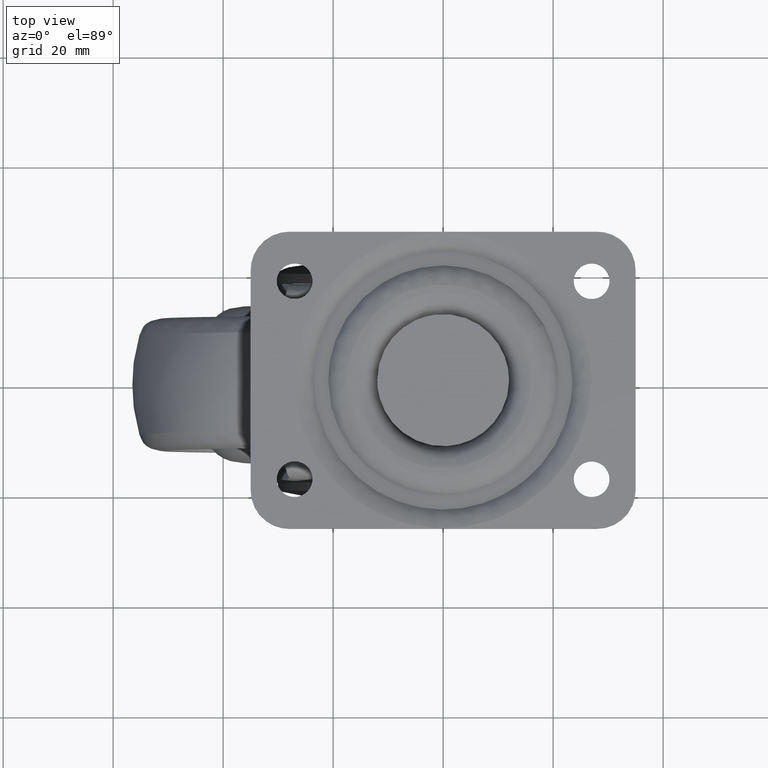
[diagram: clean part render]
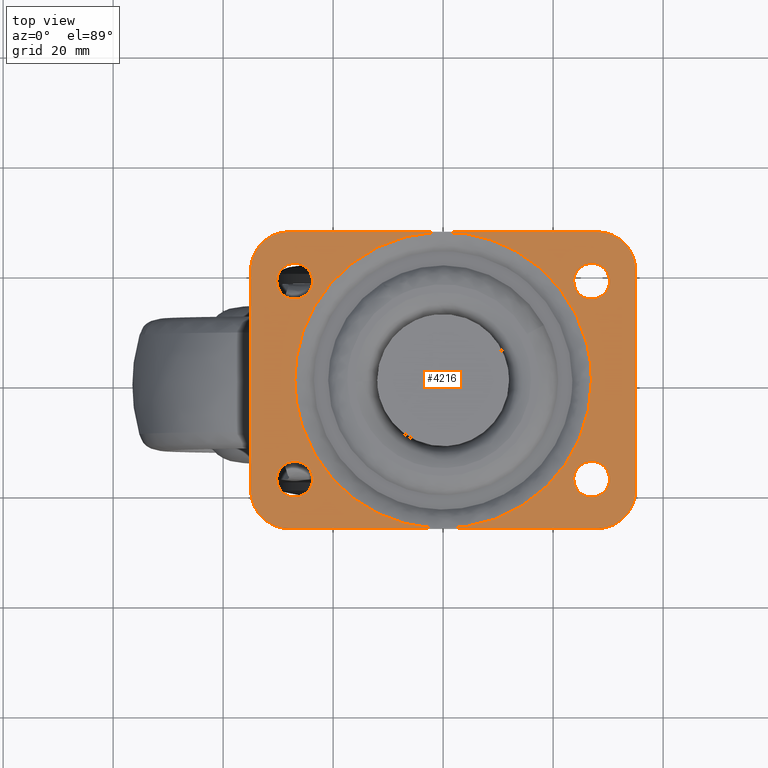
[diagram: same view with one face highlighted and labeled with its STEP entity id]
A machine part, top view. The second image highlights one B-rep face of the part: STEP entity #4216.
In plain terms, the highlighted face is a freeform B-spline surface patch.
Its self-contained STEP definition (entity closure, byte-faithful):
#2507=CARTESIAN_POINT('',(-27.383605780564441,14.772718387700410,3.306940E-013));
#2508=VERTEX_POINT('',#2507);
#2509=CARTESIAN_POINT('',(-23.750000000000000,18.0,0.0));
#2510=VERTEX_POINT('',#2509);
#2511=CARTESIAN_POINT('',(-27.383605780564441,14.772718387700410,3.306940E-013));
#2512=CARTESIAN_POINT('',(-27.192475618856520,14.750000000000004,0.0));
#2513=CARTESIAN_POINT('',(-27.0,14.750000000000000,0.0));
#2514=CARTESIAN_POINT('',(-23.749999999999996,14.749999999999993,0.0));
#2515=CARTESIAN_POINT('',(-23.750000000000000,18.0,0.0));
#2523=(BOUNDED_CURVE()B_SPLINE_CURVE(2,(#2511,#2512,#2513,#2514,#2515),.UNSPECIFIED.,.F.,.U.)B_SPLINE_CURVE_WITH_KNOTS((3,2,3),(0.229562760595619,0.250000000000000,0.500000000000000),.UNSPECIFIED.)CURVE()GEOMETRIC_REPRESENTATION_ITEM()RATIONAL_B_SPLINE_CURVE((0.956027316877157,0.976056284668759,1.0,0.707106781186547,1.0))REPRESENTATION_ITEM(''));
#2524=EDGE_CURVE('',#2508,#2510,#2523,.T.);
#2526=CARTESIAN_POINT('',(-26.801592246465201,21.243938094868220,-1.318390E-016));
#2527=VERTEX_POINT('',#2526);
#2528=CARTESIAN_POINT('',(-23.750000000000000,18.0,0.0));
#2529=CARTESIAN_POINT('',(-23.750000000000000,21.057294717355663,0.0));
#2530=CARTESIAN_POINT('',(-26.801592246465194,21.243938094868223,-1.318390E-016));
#2538=(BOUNDED_CURVE()B_SPLINE_CURVE(2,(#2528,#2529,#2530),.UNSPECIFIED.,.F.,.U.)B_SPLINE_CURVE_WITH_KNOTS((3,3),(0.500000000000000,0.739332962237020),.UNSPECIFIED.)CURVE()GEOMETRIC_REPRESENTATION_ITEM()RATIONAL_B_SPLINE_CURVE((1.0,0.719603993288963,0.976072041662597))REPRESENTATION_ITEM(''));
#2539=EDGE_CURVE('',#2510,#2527,#2538,.T.);
#2610=CARTESIAN_POINT('',(-30.250000000000000,18.0,0.0));
#2611=VERTEX_POINT('',#2610);
#2612=CARTESIAN_POINT('',(-30.250000000000000,18.0,0.0));
#2613=CARTESIAN_POINT('',(-30.250000000000007,15.113427852826153,0.0));
#2614=CARTESIAN_POINT('',(-27.383605780564444,14.772718387700406,3.306940E-013));
#2622=(BOUNDED_CURVE()B_SPLINE_CURVE(2,(#2612,#2613,#2614),.UNSPECIFIED.,.F.,.U.)B_SPLINE_CURVE_WITH_KNOTS((3,3),(0.0,0.229562760595619),.UNSPECIFIED.)CURVE()GEOMETRIC_REPRESENTATION_ITEM()RATIONAL_B_SPLINE_CURVE((1.0,0.731050496517788,0.956027316877158))REPRESENTATION_ITEM(''));
#2623=EDGE_CURVE('',#2611,#2508,#2622,.T.);
#2657=CARTESIAN_POINT('',(-26.801592246465201,21.243938094868220,-1.318390E-016));
#2658=CARTESIAN_POINT('',(-26.900703519232941,21.249999999999993,0.0));
#2659=CARTESIAN_POINT('',(-27.0,21.250000000000000,0.0));
#2660=CARTESIAN_POINT('',(-30.250000000000000,21.249999999999996,0.0));
#2661=CARTESIAN_POINT('',(-30.250000000000000,18.0,0.0));
#2669=(BOUNDED_CURVE()B_SPLINE_CURVE(2,(#2657,#2658,#2659,#2660,#2661),.UNSPECIFIED.,.F.,.U.)B_SPLINE_CURVE_WITH_KNOTS((3,2,3),(0.739332962237020,0.750000000000000,1.0),.UNSPECIFIED.)CURVE()GEOMETRIC_REPRESENTATION_ITEM()RATIONAL_B_SPLINE_CURVE((0.976072041662596,0.987502787897584,1.0,0.707106781186547,1.0))REPRESENTATION_ITEM(''));
#2670=EDGE_CURVE('',#2527,#2611,#2669,.T.);
#2697=CARTESIAN_POINT('',(-27.383605780564441,-21.227281612299588,3.306940E-013));
#2698=VERTEX_POINT('',#2697);
#2699=CARTESIAN_POINT('',(-23.750000000000000,-18.0,0.0));
#2700=VERTEX_POINT('',#2699);
#2701=CARTESIAN_POINT('',(-27.383605780564448,-21.227281612299588,3.306940E-013));
#2702=CARTESIAN_POINT('',(-27.192475618856523,-21.249999999999993,0.0));
#2703=CARTESIAN_POINT('',(-27.0,-21.250000000000000,0.0));
#2704=CARTESIAN_POINT('',(-23.749999999999996,-21.249999999999996,0.0));
#2705=CARTESIAN_POINT('',(-23.750000000000000,-18.0,0.0));
#2713=(BOUNDED_CURVE()B_SPLINE_CURVE(2,(#2701,#2702,#2703,#2704,#2705),.UNSPECIFIED.,.F.,.U.)B_SPLINE_CURVE_WITH_KNOTS((3,2,3),(0.229562760595619,0.250000000000000,0.500000000000000),.UNSPECIFIED.)CURVE()GEOMETRIC_REPRESENTATION_ITEM()RATIONAL_B_SPLINE_CURVE((0.956027316877157,0.976056284668759,1.0,0.707106781186547,1.0))REPRESENTATION_ITEM(''));
#2714=EDGE_CURVE('',#2698,#2700,#2713,.T.);
#2716=CARTESIAN_POINT('',(-26.801592246465201,-14.756061905131780,-1.318390E-016));
#2717=VERTEX_POINT('',#2716);
#2718=CARTESIAN_POINT('',(-23.750000000000000,-18.0,0.0));
#2719=CARTESIAN_POINT('',(-23.750000000000000,-14.942705282644328,0.0));
#2720=CARTESIAN_POINT('',(-26.801592246465194,-14.756061905131780,-1.318390E-016));
#2728=(BOUNDED_CURVE()B_SPLINE_CURVE(2,(#2718,#2719,#2720),.UNSPECIFIED.,.F.,.U.)B_SPLINE_CURVE_WITH_KNOTS((3,3),(0.500000000000000,0.739332962237020),.UNSPECIFIED.)CURVE()GEOMETRIC_REPRESENTATION_ITEM()RATIONAL_B_SPLINE_CURVE((1.0,0.719603993288963,0.976072041662597))REPRESENTATION_ITEM(''));
#2729=EDGE_CURVE('',#2700,#2717,#2728,.T.);
#2800=CARTESIAN_POINT('',(-30.250000000000000,-18.0,0.0));
#2801=VERTEX_POINT('',#2800);
#2802=CARTESIAN_POINT('',(-30.250000000000000,-18.0,0.0));
#2803=CARTESIAN_POINT('',(-30.250000000000007,-20.886572147173840,0.0));
#2804=CARTESIAN_POINT('',(-27.383605780564441,-21.227281612299596,3.306940E-013));
#2812=(BOUNDED_CURVE()B_SPLINE_CURVE(2,(#2802,#2803,#2804),.UNSPECIFIED.,.F.,.U.)B_SPLINE_CURVE_WITH_KNOTS((3,3),(0.0,0.229562760595619),.UNSPECIFIED.)CURVE()GEOMETRIC_REPRESENTATION_ITEM()RATIONAL_B_SPLINE_CURVE((1.0,0.731050496517789,0.956027316877157))REPRESENTATION_ITEM(''));
#2813=EDGE_CURVE('',#2801,#2698,#2812,.T.);
#2847=CARTESIAN_POINT('',(-26.801592246465201,-14.756061905131778,-1.318390E-016));
#2848=CARTESIAN_POINT('',(-26.900703519232941,-14.750000000000004,0.0));
#2849=CARTESIAN_POINT('',(-27.0,-14.750000000000000,0.0));
#2850=CARTESIAN_POINT('',(-30.250000000000000,-14.749999999999993,0.0));
#2851=CARTESIAN_POINT('',(-30.250000000000000,-18.0,0.0));
#2859=(BOUNDED_CURVE()B_SPLINE_CURVE(2,(#2847,#2848,#2849,#2850,#2851),.UNSPECIFIED.,.F.,.U.)B_SPLINE_CURVE_WITH_KNOTS((3,2,3),(0.739332962237020,0.750000000000000,1.0),.UNSPECIFIED.)CURVE()GEOMETRIC_REPRESENTATION_ITEM()RATIONAL_B_SPLINE_CURVE((0.976072041662596,0.987502787897584,1.0,0.707106781186547,1.0))REPRESENTATION_ITEM(''));
#2860=EDGE_CURVE('',#2717,#2801,#2859,.T.);
#2887=CARTESIAN_POINT('',(26.616394219435559,14.772718387700410,3.306940E-013));
#2888=VERTEX_POINT('',#2887);
#2889=CARTESIAN_POINT('',(30.250000000000000,18.0,0.0));
#2890=VERTEX_POINT('',#2889);
#2891=CARTESIAN_POINT('',(26.616394219435552,14.772718387700412,3.306940E-013));
#2892=CARTESIAN_POINT('',(26.807524381143484,14.749999999999996,0.0));
#2893=CARTESIAN_POINT('',(27.0,14.750000000000000,0.0));
#2894=CARTESIAN_POINT('',(30.250000000000000,14.749999999999993,0.0));
#2895=CARTESIAN_POINT('',(30.250000000000000,18.0,0.0));
#2903=(BOUNDED_CURVE()B_SPLINE_CURVE(2,(#2891,#2892,#2893,#2894,#2895),.UNSPECIFIED.,.F.,.U.)B_SPLINE_CURVE_WITH_KNOTS((3,2,3),(0.229562760595619,0.250000000000000,0.500000000000000),.UNSPECIFIED.)CURVE()GEOMETRIC_REPRESENTATION_ITEM()RATIONAL_B_SPLINE_CURVE((0.956027316877157,0.976056284668759,1.0,0.707106781186547,1.0))REPRESENTATION_ITEM(''));
#2904=EDGE_CURVE('',#2888,#2890,#2903,.T.);
#2906=CARTESIAN_POINT('',(27.198407753534799,21.243938094868220,1.353084E-016));
#2907=VERTEX_POINT('',#2906);
#2908=CARTESIAN_POINT('',(30.250000000000000,18.0,0.0));
#2909=CARTESIAN_POINT('',(30.250000000000000,21.057294717355663,0.0));
#2910=CARTESIAN_POINT('',(27.198407753534802,21.243938094868223,1.353084E-016));
#2918=(BOUNDED_CURVE()B_SPLINE_CURVE(2,(#2908,#2909,#2910),.UNSPECIFIED.,.F.,.U.)B_SPLINE_CURVE_WITH_KNOTS((3,3),(0.500000000000000,0.739332962237020),.UNSPECIFIED.)CURVE()GEOMETRIC_REPRESENTATION_ITEM()RATIONAL_B_SPLINE_CURVE((1.0,0.719603993288963,0.976072041662597))REPRESENTATION_ITEM(''));
#2919=EDGE_CURVE('',#2890,#2907,#2918,.T.);
#2990=CARTESIAN_POINT('',(23.750000000000000,18.0,0.0));
#2991=VERTEX_POINT('',#2990);
#2992=CARTESIAN_POINT('',(23.750000000000000,18.0,0.0));
#2993=CARTESIAN_POINT('',(23.750000000000000,15.113427852826145,0.0));
#2994=CARTESIAN_POINT('',(26.616394219435556,14.772718387700404,3.306940E-013));
#3002=(BOUNDED_CURVE()B_SPLINE_CURVE(2,(#2992,#2993,#2994),.UNSPECIFIED.,.F.,.U.)B_SPLINE_CURVE_WITH_KNOTS((3,3),(0.0,0.229562760595619),.UNSPECIFIED.)CURVE()GEOMETRIC_REPRESENTATION_ITEM()RATIONAL_B_SPLINE_CURVE((1.0,0.731050496517789,0.956027316877157))REPRESENTATION_ITEM(''));
#3003=EDGE_CURVE('',#2991,#2888,#3002,.T.);
#3037=CARTESIAN_POINT('',(27.198407753534802,21.243938094868223,1.353084E-016));
#3038=CARTESIAN_POINT('',(27.099296480767059,21.250000000000000,0.0));
#3039=CARTESIAN_POINT('',(27.0,21.250000000000000,0.0));
#3040=CARTESIAN_POINT('',(23.749999999999996,21.249999999999996,0.0));
#3041=CARTESIAN_POINT('',(23.750000000000000,18.0,0.0));
#3049=(BOUNDED_CURVE()B_SPLINE_CURVE(2,(#3037,#3038,#3039,#3040,#3041),.UNSPECIFIED.,.F.,.U.)B_SPLINE_CURVE_WITH_KNOTS((3,2,3),(0.739332962237020,0.750000000000000,1.0),.UNSPECIFIED.)CURVE()GEOMETRIC_REPRESENTATION_ITEM()RATIONAL_B_SPLINE_CURVE((0.976072041662597,0.987502787897585,1.0,0.707106781186547,1.0))REPRESENTATION_ITEM(''));
#3050=EDGE_CURVE('',#2907,#2991,#3049,.T.);
#3077=CARTESIAN_POINT('',(26.616394219435559,-21.227281612299588,3.306940E-013));
#3078=VERTEX_POINT('',#3077);
#3079=CARTESIAN_POINT('',(30.250000000000000,-18.0,0.0));
#3080=VERTEX_POINT('',#3079);
#3081=CARTESIAN_POINT('',(26.616394219435556,-21.227281612299588,3.306940E-013));
#3082=CARTESIAN_POINT('',(26.807524381143477,-21.249999999999993,0.0));
#3083=CARTESIAN_POINT('',(27.0,-21.250000000000000,0.0));
#3084=CARTESIAN_POINT('',(30.250000000000000,-21.249999999999996,0.0));
#3085=CARTESIAN_POINT('',(30.250000000000000,-18.0,0.0));
#3093=(BOUNDED_CURVE()B_SPLINE_CURVE(2,(#3081,#3082,#3083,#3084,#3085),.UNSPECIFIED.,.F.,.U.)B_SPLINE_CURVE_WITH_KNOTS((3,2,3),(0.229562760595619,0.250000000000000,0.500000000000000),.UNSPECIFIED.)CURVE()GEOMETRIC_REPRESENTATION_ITEM()RATIONAL_B_SPLINE_CURVE((0.956027316877157,0.976056284668759,1.0,0.707106781186547,1.0))REPRESENTATION_ITEM(''));
#3094=EDGE_CURVE('',#3078,#3080,#3093,.T.);
#3096=CARTESIAN_POINT('',(27.198407753534799,-14.756061905131780,-1.318390E-016));
#3097=VERTEX_POINT('',#3096);
#3098=CARTESIAN_POINT('',(30.250000000000000,-18.0,0.0));
#3099=CARTESIAN_POINT('',(30.250000000000000,-14.942705282644328,0.0));
#3100=CARTESIAN_POINT('',(27.198407753534802,-14.756061905131780,-1.318390E-016));
#3108=(BOUNDED_CURVE()B_SPLINE_CURVE(2,(#3098,#3099,#3100),.UNSPECIFIED.,.F.,.U.)B_SPLINE_CURVE_WITH_KNOTS((3,3),(0.500000000000000,0.739332962237020),.UNSPECIFIED.)CURVE()GEOMETRIC_REPRESENTATION_ITEM()RATIONAL_B_SPLINE_CURVE((1.0,0.719603993288963,0.976072041662597))REPRESENTATION_ITEM(''));
#3109=EDGE_CURVE('',#3080,#3097,#3108,.T.);
#3180=CARTESIAN_POINT('',(23.750000000000000,-18.0,0.0));
#3181=VERTEX_POINT('',#3180);
#3182=CARTESIAN_POINT('',(23.750000000000000,-18.0,0.0));
#3183=CARTESIAN_POINT('',(23.750000000000004,-20.886572147173840,0.0));
#3184=CARTESIAN_POINT('',(26.616394219435556,-21.227281612299588,3.306940E-013));
#3192=(BOUNDED_CURVE()B_SPLINE_CURVE(2,(#3182,#3183,#3184),.UNSPECIFIED.,.F.,.U.)B_SPLINE_CURVE_WITH_KNOTS((3,3),(0.0,0.229562760595619),.UNSPECIFIED.)CURVE()GEOMETRIC_REPRESENTATION_ITEM()RATIONAL_B_SPLINE_CURVE((1.0,0.731050496517789,0.956027316877157))REPRESENTATION_ITEM(''));
#3193=EDGE_CURVE('',#3181,#3078,#3192,.T.);
#3227=CARTESIAN_POINT('',(27.198407753534802,-14.756061905131780,-1.318390E-016));
#3228=CARTESIAN_POINT('',(27.099296480767059,-14.749999999999998,0.0));
#3229=CARTESIAN_POINT('',(27.0,-14.750000000000000,0.0));
#3230=CARTESIAN_POINT('',(23.749999999999996,-14.749999999999993,0.0));
#3231=CARTESIAN_POINT('',(23.750000000000000,-18.0,0.0));
#3239=(BOUNDED_CURVE()B_SPLINE_CURVE(2,(#3227,#3228,#3229,#3230,#3231),.UNSPECIFIED.,.F.,.U.)B_SPLINE_CURVE_WITH_KNOTS((3,2,3),(0.739332962237020,0.750000000000000,1.0),.UNSPECIFIED.)CURVE()GEOMETRIC_REPRESENTATION_ITEM()RATIONAL_B_SPLINE_CURVE((0.976072041662597,0.987502787897585,1.0,0.707106781186547,1.0))REPRESENTATION_ITEM(''));
#3240=EDGE_CURVE('',#3097,#3181,#3239,.T.);
#3693=CARTESIAN_POINT('',(-23.463723184745589,13.285950106063810,-6.720702E-016));
#3694=VERTEX_POINT('',#3693);
#3708=CARTESIAN_POINT('',(-26.964101615137750,0.0,0.0));
#3709=VERTEX_POINT('',#3708);
#3710=CARTESIAN_POINT('',(-26.964101615137750,0.0,0.0));
#3711=CARTESIAN_POINT('',(-26.964101615137750,7.104088073108244,0.0));
#3712=CARTESIAN_POINT('',(-23.463723184745596,13.285950106063812,-6.720702E-016));
#3720=(BOUNDED_CURVE()B_SPLINE_CURVE(2,(#3710,#3711,#3712),.UNSPECIFIED.,.F.,.U.)B_SPLINE_CURVE_WITH_KNOTS((3,3),(0.0,0.083983638484567),.UNSPECIFIED.)CURVE()GEOMETRIC_REPRESENTATION_ITEM()RATIONAL_B_SPLINE_CURVE((1.0,0.901607047186359,0.869321279800958))REPRESENTATION_ITEM(''));
#3721=EDGE_CURVE('',#3709,#3694,#3720,.T.);
#3723=CARTESIAN_POINT('',(26.964101615137750,0.0,0.0));
#3724=VERTEX_POINT('',#3723);
#3725=CARTESIAN_POINT('',(26.964101615137750,0.0,0.0));
#3726=CARTESIAN_POINT('',(26.964101615137753,-26.964101615137753,0.0));
#3727=CARTESIAN_POINT('',(0.0,-26.964101615137750,0.0));
#3728=CARTESIAN_POINT('',(-26.964101615137753,-26.964101615137753,0.0));
#3729=CARTESIAN_POINT('',(-26.964101615137750,0.0,0.0));
#3737=(BOUNDED_CURVE()B_SPLINE_CURVE(2,(#3725,#3726,#3727,#3728,#3729),.UNSPECIFIED.,.F.,.U.)B_SPLINE_CURVE_WITH_KNOTS((3,2,3),(0.500000000000000,0.750000000000000,1.0),.UNSPECIFIED.)CURVE()GEOMETRIC_REPRESENTATION_ITEM()RATIONAL_B_SPLINE_CURVE((1.0,0.707106781186547,1.0,0.707106781186547,1.0))REPRESENTATION_ITEM(''));
#3738=EDGE_CURVE('',#3724,#3709,#3737,.T.);
#3740=CARTESIAN_POINT('',(13.285950106063799,23.463723184745589,-6.109730E-016));
#3741=VERTEX_POINT('',#3740);
#3742=CARTESIAN_POINT('',(13.285950106063797,23.463723184745593,-6.109730E-016));
#3743=CARTESIAN_POINT('',(26.964101615137743,15.718693248031707,0.0));
#3744=CARTESIAN_POINT('',(26.964101615137750,0.0,0.0));
#3752=(BOUNDED_CURVE()B_SPLINE_CURVE(2,(#3742,#3743,#3744),.UNSPECIFIED.,.F.,.U.)B_SPLINE_CURVE_WITH_KNOTS((3,3),(0.333983638484567,0.500000000000000),.UNSPECIFIED.)CURVE()GEOMETRIC_REPRESENTATION_ITEM()RATIONAL_B_SPLINE_CURVE((0.869321279800958,0.805499734000188,1.0))REPRESENTATION_ITEM(''));
#3753=EDGE_CURVE('',#3741,#3724,#3752,.T.);
#3804=CARTESIAN_POINT('',(-23.463723184745593,13.285950106063810,-6.720702E-016));
#3805=CARTESIAN_POINT('',(-15.718693248031693,26.964101615137743,0.0));
#3806=CARTESIAN_POINT('',(0.0,26.964101615137750,0.0));
#3807=CARTESIAN_POINT('',(7.104088073108255,26.964101615137739,0.0));
#3808=CARTESIAN_POINT('',(13.285950106063799,23.463723184745596,-6.109730E-016));
#3816=(BOUNDED_CURVE()B_SPLINE_CURVE(2,(#3804,#3805,#3806,#3807,#3808),.UNSPECIFIED.,.F.,.U.)B_SPLINE_CURVE_WITH_KNOTS((3,2,3),(0.083983638484567,0.250000000000000,0.333983638484567),.UNSPECIFIED.)CURVE()GEOMETRIC_REPRESENTATION_ITEM()RATIONAL_B_SPLINE_CURVE((0.869321279800958,0.805499734000188,1.0,0.901607047186359,0.869321279800958))REPRESENTATION_ITEM(''));
#3817=EDGE_CURVE('',#3694,#3741,#3816,.T.);
#4091=CARTESIAN_POINT('',(-38.496499864326417,29.697299895337519,0.0));
#4092=CARTESIAN_POINT('',(38.496501741872727,29.697299895337519,0.0));
#4093=CARTESIAN_POINT('',(-38.496499864326417,-29.697301343730391,0.0));
#4094=CARTESIAN_POINT('',(38.496501741872727,-29.697301343730391,0.0));
#4095=B_SPLINE_SURFACE_WITH_KNOTS('',1,1,((#4091,#4093),(#4092,#4094)),.UNSPECIFIED.,.F.,.F.,.U.,(2,2),(2,2),(0.0,76.993001606199158),(0.0,59.394601239067910),.UNSPECIFIED.);
#4096=CARTESIAN_POINT('',(28.0,27.0,0.0));
#4097=VERTEX_POINT('',#4096);
#4098=CARTESIAN_POINT('',(-28.0,27.0,0.0));
#4099=VERTEX_POINT('',#4098);
#4100=CARTESIAN_POINT('',(28.0,27.0,0.0));
#4101=CARTESIAN_POINT('',(-28.0,27.0,0.0));
#4102=QUASI_UNIFORM_CURVE('',1,(#4100,#4101),.UNSPECIFIED.,.F.,.U.);
#4103=EDGE_CURVE('',#4097,#4099,#4102,.T.);
#4104=ORIENTED_EDGE('',*,*,#4103,.T.);
#4105=CARTESIAN_POINT('',(-35.0,20.0,0.0));
#4106=VERTEX_POINT('',#4105);
#4107=CARTESIAN_POINT('',(-28.0,27.0,0.0));
#4108=CARTESIAN_POINT('',(-35.0,27.0,0.0));
#4109=CARTESIAN_POINT('',(-35.0,20.0,0.0));
#4117=(BOUNDED_CURVE()B_SPLINE_CURVE(2,(#4107,#4108,#4109),.UNSPECIFIED.,.F.,.U.)CURVE()GEOMETRIC_REPRESENTATION_ITEM()QUASI_UNIFORM_CURVE()RATIONAL_B_SPLINE_CURVE((1.0,0.707106781186547,1.0))REPRESENTATION_ITEM(''));
#4118=EDGE_CURVE('',#4099,#4106,#4117,.T.);
#4119=ORIENTED_EDGE('',*,*,#4118,.T.);
#4120=CARTESIAN_POINT('',(-35.0,-20.0,0.0));
#4121=VERTEX_POINT('',#4120);
#4122=CARTESIAN_POINT('',(-35.0,20.0,0.0));
#4123=CARTESIAN_POINT('',(-35.0,-20.0,0.0));
#4124=QUASI_UNIFORM_CURVE('',1,(#4122,#4123),.UNSPECIFIED.,.F.,.U.);
#4125=EDGE_CURVE('',#4106,#4121,#4124,.T.);
#4126=ORIENTED_EDGE('',*,*,#4125,.T.);
#4127=CARTESIAN_POINT('',(-28.0,-27.0,0.0));
#4128=VERTEX_POINT('',#4127);
#4129=CARTESIAN_POINT('',(-35.0,-20.0,0.0));
#4130=CARTESIAN_POINT('',(-35.0,-27.0,0.0));
#4131=CARTESIAN_POINT('',(-28.0,-27.0,0.0));
#4139=(BOUNDED_CURVE()B_SPLINE_CURVE(2,(#4129,#4130,#4131),.UNSPECIFIED.,.F.,.U.)CURVE()GEOMETRIC_REPRESENTATION_ITEM()QUASI_UNIFORM_CURVE()RATIONAL_B_SPLINE_CURVE((1.0,0.707106781186547,1.0))REPRESENTATION_ITEM(''));
#4140=EDGE_CURVE('',#4121,#4128,#4139,.T.);
#4141=ORIENTED_EDGE('',*,*,#4140,.T.);
#4142=CARTESIAN_POINT('',(28.0,-27.0,0.0));
#4143=VERTEX_POINT('',#4142);
#4144=CARTESIAN_POINT('',(-28.0,-27.0,0.0));
#4145=CARTESIAN_POINT('',(28.0,-27.0,0.0));
#4146=QUASI_UNIFORM_CURVE('',1,(#4144,#4145),.UNSPECIFIED.,.F.,.U.);
#4147=EDGE_CURVE('',#4128,#4143,#4146,.T.);
#4148=ORIENTED_EDGE('',*,*,#4147,.T.);
#4149=CARTESIAN_POINT('',(35.0,-20.0,0.0));
#4150=VERTEX_POINT('',#4149);
#4151=CARTESIAN_POINT('',(28.0,-27.0,0.0));
#4152=CARTESIAN_POINT('',(35.0,-27.0,0.0));
#4153=CARTESIAN_POINT('',(35.0,-20.0,0.0));
#4161=(BOUNDED_CURVE()B_SPLINE_CURVE(2,(#4151,#4152,#4153),.UNSPECIFIED.,.F.,.U.)CURVE()GEOMETRIC_REPRESENTATION_ITEM()QUASI_UNIFORM_CURVE()RATIONAL_B_SPLINE_CURVE((1.0,0.707106781186547,1.0))REPRESENTATION_ITEM(''));
#4162=EDGE_CURVE('',#4143,#4150,#4161,.T.);
#4163=ORIENTED_EDGE('',*,*,#4162,.T.);
#4164=CARTESIAN_POINT('',(35.0,20.0,0.0));
#4165=VERTEX_POINT('',#4164);
#4166=CARTESIAN_POINT('',(35.0,-20.0,0.0));
#4167=CARTESIAN_POINT('',(35.0,20.0,0.0));
#4168=QUASI_UNIFORM_CURVE('',1,(#4166,#4167),.UNSPECIFIED.,.F.,.U.);
#4169=EDGE_CURVE('',#4150,#4165,#4168,.T.);
#4170=ORIENTED_EDGE('',*,*,#4169,.T.);
#4171=CARTESIAN_POINT('',(35.0,20.0,0.0));
#4172=CARTESIAN_POINT('',(35.0,27.0,0.0));
#4173=CARTESIAN_POINT('',(28.0,27.0,0.0));
#4181=(BOUNDED_CURVE()B_SPLINE_CURVE(2,(#4171,#4172,#4173),.UNSPECIFIED.,.F.,.U.)CURVE()GEOMETRIC_REPRESENTATION_ITEM()QUASI_UNIFORM_CURVE()RATIONAL_B_SPLINE_CURVE((1.0,0.707106781186547,1.0))REPRESENTATION_ITEM(''));
#4182=EDGE_CURVE('',#4165,#4097,#4181,.T.);
#4183=ORIENTED_EDGE('',*,*,#4182,.T.);
#4184=EDGE_LOOP('',(#4104,#4119,#4126,#4141,#4148,#4163,#4170,#4183));
#4185=FACE_OUTER_BOUND('',#4184,.T.);
#4186=ORIENTED_EDGE('',*,*,#3738,.T.);
#4187=ORIENTED_EDGE('',*,*,#3721,.T.);
#4188=ORIENTED_EDGE('',*,*,#3817,.T.);
#4189=ORIENTED_EDGE('',*,*,#3753,.T.);
#4190=EDGE_LOOP('',(#4186,#4187,#4188,#4189));
#4191=FACE_BOUND('',#4190,.T.);
#4192=ORIENTED_EDGE('',*,*,#3109,.F.);
#4193=ORIENTED_EDGE('',*,*,#3094,.F.);
#4194=ORIENTED_EDGE('',*,*,#3193,.F.);
#4195=ORIENTED_EDGE('',*,*,#3240,.F.);
#4196=EDGE_LOOP('',(#4192,#4193,#4194,#4195));
#4197=FACE_BOUND('',#4196,.T.);
#4198=ORIENTED_EDGE('',*,*,#2919,.F.);
#4199=ORIENTED_EDGE('',*,*,#2904,.F.);
#4200=ORIENTED_EDGE('',*,*,#3003,.F.);
#4201=ORIENTED_EDGE('',*,*,#3050,.F.);
#4202=EDGE_LOOP('',(#4198,#4199,#4200,#4201));
#4203=FACE_BOUND('',#4202,.T.);
#4204=ORIENTED_EDGE('',*,*,#2729,.F.);
#4205=ORIENTED_EDGE('',*,*,#2714,.F.);
#4206=ORIENTED_EDGE('',*,*,#2813,.F.);
#4207=ORIENTED_EDGE('',*,*,#2860,.F.);
#4208=EDGE_LOOP('',(#4204,#4205,#4206,#4207));
#4209=FACE_BOUND('',#4208,.T.);
#4210=ORIENTED_EDGE('',*,*,#2539,.F.);
#4211=ORIENTED_EDGE('',*,*,#2524,.F.);
#4212=ORIENTED_EDGE('',*,*,#2623,.F.);
#4213=ORIENTED_EDGE('',*,*,#2670,.F.);
#4214=EDGE_LOOP('',(#4210,#4211,#4212,#4213));
#4215=FACE_BOUND('',#4214,.T.);
#4216=ADVANCED_FACE('',(#4185,#4191,#4197,#4203,#4209,#4215),#4095,.F.);